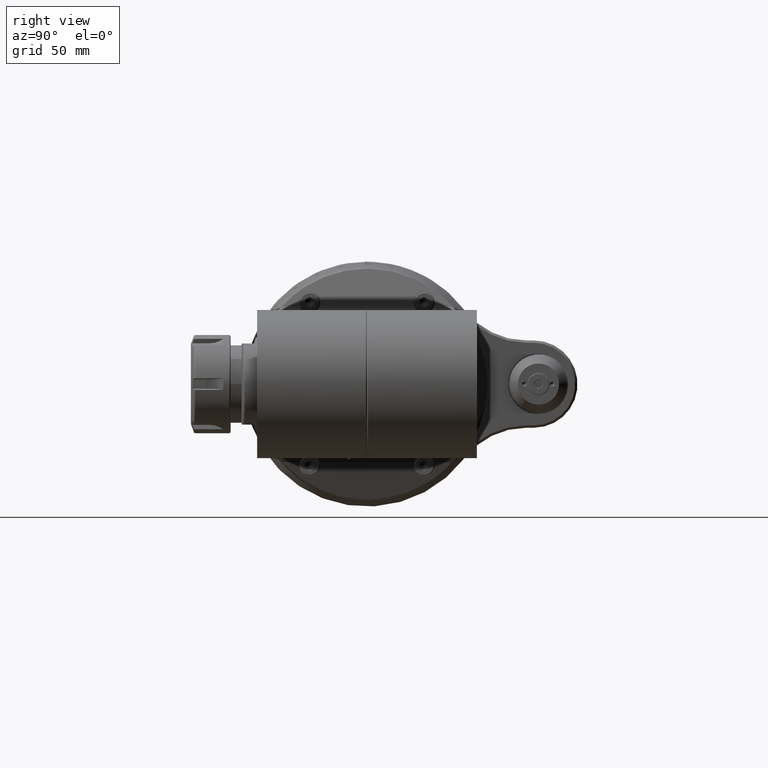
[diagram: clean part render]
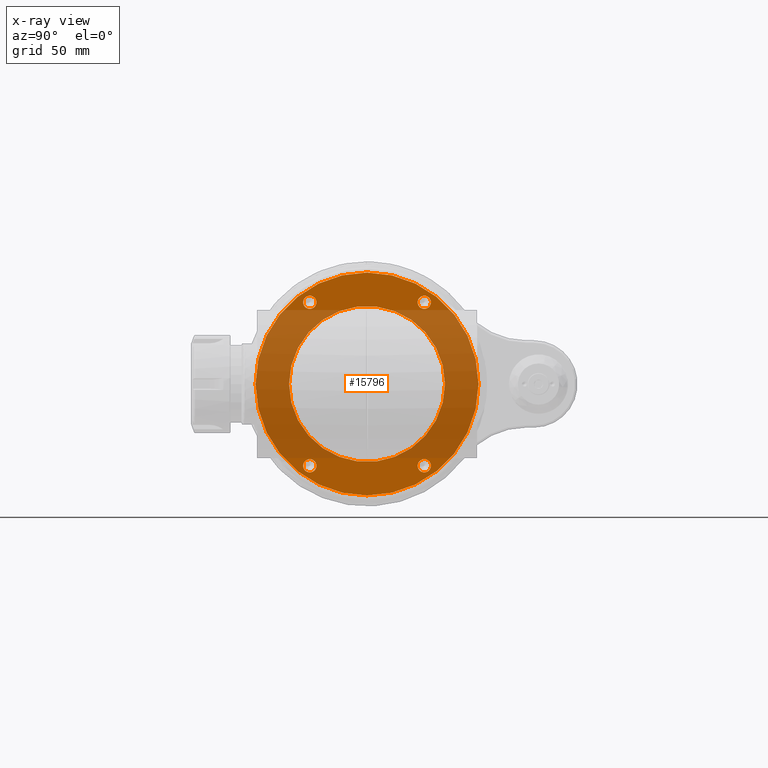
[diagram: x-ray — body ghosted, one internal face saturated and labeled with its STEP entity id]
A machine part, right view, then the same camera in x-ray: the body is ghosted and one INTERNAL B-rep face — a face not visible from any outside direction — is saturated and labeled: STEP entity #15796.
In plain terms, the highlighted planar face has unit normal (-1, -0, 0).
Its self-contained STEP definition (entity closure, byte-faithful):
#573=FACE_BOUND('',#2855,.T.);
#574=FACE_BOUND('',#2856,.T.);
#575=FACE_BOUND('',#2857,.T.);
#576=FACE_BOUND('',#2858,.T.);
#577=FACE_BOUND('',#2859,.T.);
#1157=PLANE('',#17334);
#1936=FACE_OUTER_BOUND('',#2854,.T.);
#2854=EDGE_LOOP('',(#13739));
#2855=EDGE_LOOP('',(#13740));
#2856=EDGE_LOOP('',(#13741));
#2857=EDGE_LOOP('',(#13742));
#2858=EDGE_LOOP('',(#13743));
#2859=EDGE_LOOP('',(#13744));
#5986=CIRCLE('',#17333,2.81496062992126);
#5987=CIRCLE('',#17335,0.167322834645669);
#5988=CIRCLE('',#17336,0.167322834645669);
#5989=CIRCLE('',#17337,0.167322834645669);
#5990=CIRCLE('',#17338,0.167322834645669);
#5991=CIRCLE('',#17339,1.96850393700787);
#7289=VERTEX_POINT('',#46026);
#7290=VERTEX_POINT('',#46030);
#7291=VERTEX_POINT('',#46032);
#7292=VERTEX_POINT('',#46034);
#7293=VERTEX_POINT('',#46036);
#7294=VERTEX_POINT('',#46038);
#9554=EDGE_CURVE('',#7289,#7289,#5986,.T.);
#9555=EDGE_CURVE('',#7290,#7290,#5987,.T.);
#9556=EDGE_CURVE('',#7291,#7291,#5988,.T.);
#9557=EDGE_CURVE('',#7292,#7292,#5989,.T.);
#9558=EDGE_CURVE('',#7293,#7293,#5990,.T.);
#9559=EDGE_CURVE('',#7294,#7294,#5991,.T.);
#13739=ORIENTED_EDGE('',*,*,#9554,.T.);
#13740=ORIENTED_EDGE('',*,*,#9555,.T.);
#13741=ORIENTED_EDGE('',*,*,#9556,.T.);
#13742=ORIENTED_EDGE('',*,*,#9557,.T.);
#13743=ORIENTED_EDGE('',*,*,#9558,.T.);
#13744=ORIENTED_EDGE('',*,*,#9559,.T.);
#15796=ADVANCED_FACE('',(#1936,#573,#574,#575,#576,#577),#1157,.T.);
#17333=AXIS2_PLACEMENT_3D('',#46028,#21058,#21059);
#17334=AXIS2_PLACEMENT_3D('',#46029,#21060,#21061);
#17335=AXIS2_PLACEMENT_3D('',#46031,#21062,#21063);
#17336=AXIS2_PLACEMENT_3D('',#46033,#21064,#21065);
#17337=AXIS2_PLACEMENT_3D('',#46035,#21066,#21067);
#17338=AXIS2_PLACEMENT_3D('',#46037,#21068,#21069);
#17339=AXIS2_PLACEMENT_3D('',#46039,#21070,#21071);
#21058=DIRECTION('center_axis',(-1.,0.,0.));
#21059=DIRECTION('ref_axis',(0.,-0.68634858502462,0.727272727272721));
#21060=DIRECTION('center_axis',(-1.,0.,0.));
#21061=DIRECTION('ref_axis',(0.,1.,0.));
#21062=DIRECTION('center_axis',(1.,0.,0.));
#21063=DIRECTION('ref_axis',(0.,-1.,0.));
#21064=DIRECTION('center_axis',(1.,0.,0.));
#21065=DIRECTION('ref_axis',(0.,-1.,0.));
#21066=DIRECTION('center_axis',(1.,0.,0.));
#21067=DIRECTION('ref_axis',(0.,-1.,0.));
#21068=DIRECTION('center_axis',(1.,0.,0.));
#21069=DIRECTION('ref_axis',(0.,1.,0.));
#21070=DIRECTION('center_axis',(1.,0.,0.));
#21071=DIRECTION('ref_axis',(0.,1.,0.));
#46026=CARTESIAN_POINT('',(-1.06299212598427,2.8149606299213,3.44733252515893E-16));
#46028=CARTESIAN_POINT('Origin',(-1.06299212598425,0.,0.));
#46029=CARTESIAN_POINT('Origin',(-1.06299212598425,2.39173228346457,0.));
#46030=CARTESIAN_POINT('',(-1.06299212598425,-1.61255480025472,2.06400515096457));
#46031=CARTESIAN_POINT('Origin',(-1.06299212598425,-1.44523196560906,2.06400515096457));
#46032=CARTESIAN_POINT('',(-1.06299212598425,1.27790913096339,2.06400515096457));
#46033=CARTESIAN_POINT('Origin',(-1.06299212598425,1.44523196560906,2.06400515096457));
#46034=CARTESIAN_POINT('',(-1.06299212598425,-1.61255480025472,-2.06400515096457));
#46035=CARTESIAN_POINT('Origin',(-1.06299212598425,-1.44523196560906,-2.06400515096457));
#46036=CARTESIAN_POINT('',(-1.06299212598425,1.27790913096339,-2.06400515096457));
#46037=CARTESIAN_POINT('Origin',(-1.06299212598425,1.44523196560906,-2.06400515096457));
#46038=CARTESIAN_POINT('',(-1.06299212598425,-1.96850393700787,2.41072204556566E-16));
#46039=CARTESIAN_POINT('Origin',(-1.06299212598425,0.,0.));